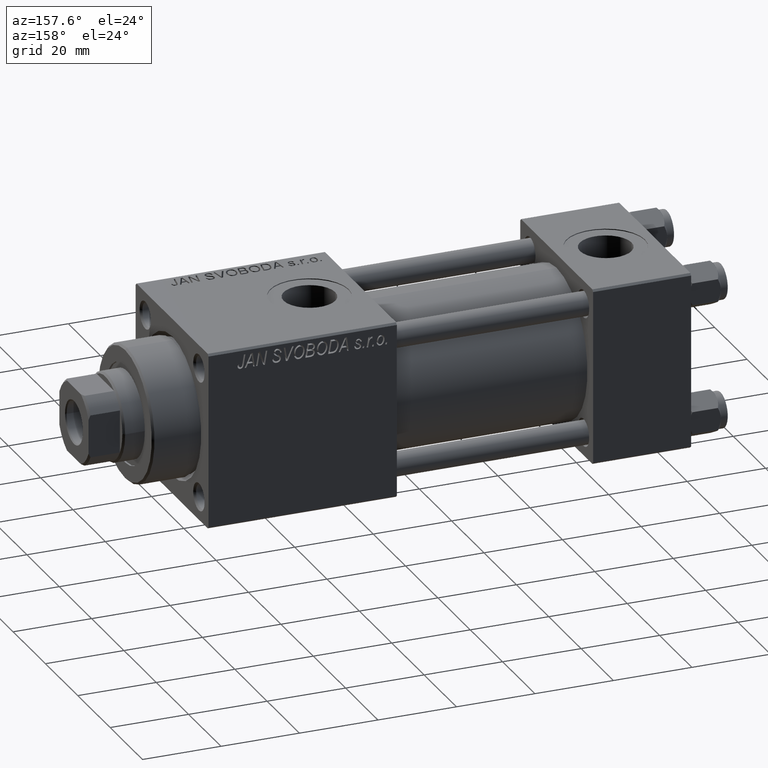
[diagram: clean part render]
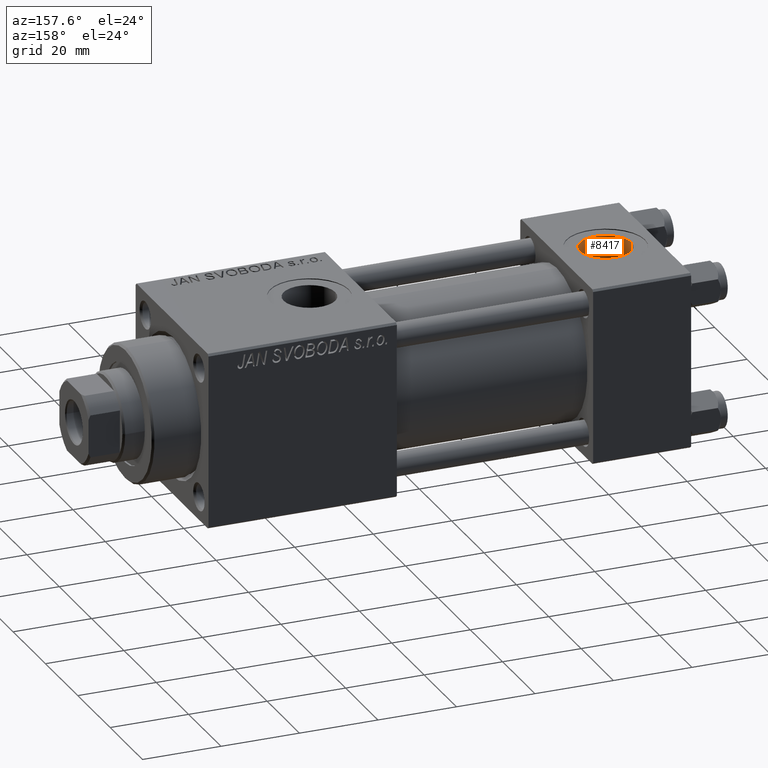
[diagram: same view with one face highlighted and labeled with its STEP entity id]
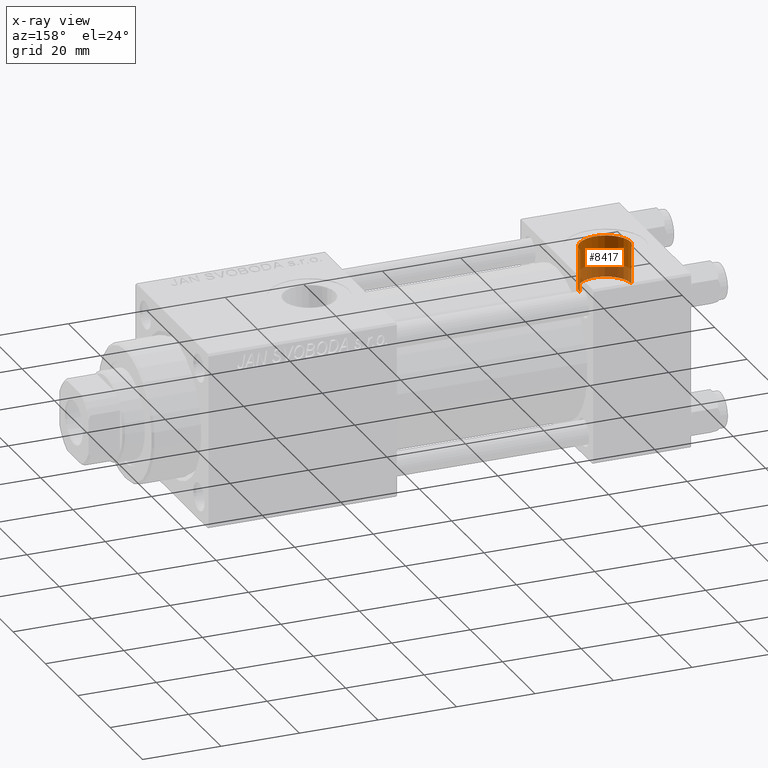
[diagram: x-ray of the same camera — body ghosted, the highlighted face saturated]
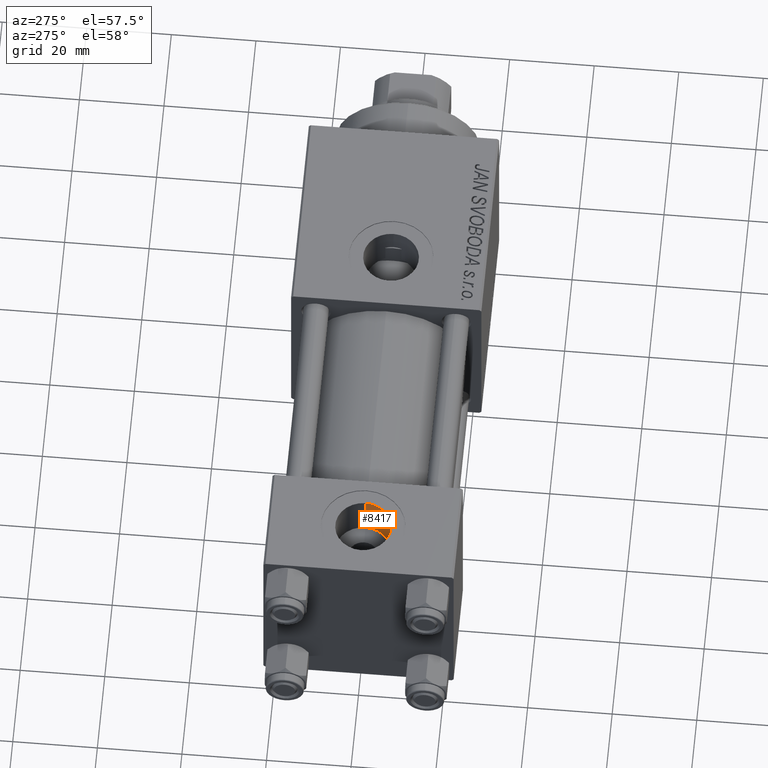
[diagram: same view with one face highlighted and labeled with its STEP entity id]
A machine part, auxiliary view. The second image highlights one B-rep face of the part: STEP entity #8417.
The next image is the same camera in x-ray: the body ghosted, the highlighted face saturated — about 32% of this face is hidden behind the body in this view.
A second angle (auxiliary view) of the same face is appended — the face is thin or edge-on in the first view.
In plain terms, the highlighted cylindrical surface (edge-blend (fillet) strip) has radius 6.58 mm, axis along (0, 0, 1).
Its self-contained STEP definition (entity closure, byte-faithful):
#227 = CARTESIAN_POINT ( 'NONE',  ( 12.50000000000000000, -1.734723475976807094E-15, 22.30000000000000071 ) ) ;
#641 = VECTOR ( 'NONE', #29941, 1000.000000000000000 ) ;
#1167 = CARTESIAN_POINT ( 'NONE',  ( 19.07999999999999829, -1.734723475976807094E-15, 11.66598726114649409 ) ) ;
#2643 = CARTESIAN_POINT ( 'NONE',  ( 5.920000000000002593, -9.289058821378490386E-16, 11.69999999999999929 ) ) ;
#3445 = ORIENTED_EDGE ( 'NONE', *, *, #12573, .T. ) ;
#7093 = LINE ( 'NONE', #2643, #641 ) ;
#7646 = DIRECTION ( 'NONE',  ( -0.000000000000000000, -0.000000000000000000, 1.000000000000000000 ) ) ;
#7837 = CIRCLE ( 'NONE', #29625, 6.579999999999999183 ) ;
#7923 = EDGE_CURVE ( 'NONE', #38993, #20762, #22772, .T. ) ;
#8417 = ADVANCED_FACE ( 'NONE', ( #26356 ), #45500, .F. ) ;
#9372 = AXIS2_PLACEMENT_3D ( 'NONE', #26620, #21900, #9574 ) ;
#9574 = DIRECTION ( 'NONE',  ( 1.000000000000000000, 0.000000000000000000, 0.000000000000000000 ) ) ;
#10641 = EDGE_CURVE ( 'NONE', #39005, #20762, #20003, .T. ) ;
#12040 = DIRECTION ( 'NONE',  ( 0.000000000000000000, 0.000000000000000000, 1.000000000000000000 ) ) ;
#12573 = EDGE_CURVE ( 'NONE', #39005, #38002, #7837, .T. ) ;
#14943 = CARTESIAN_POINT ( 'NONE',  ( 19.07999999999999829, -1.734723475976807094E-15, 22.30000000000000071 ) ) ;
#19120 = DIRECTION ( 'NONE',  ( 1.000000000000000000, 0.000000000000000000, 0.000000000000000000 ) ) ;
#20003 = LINE ( 'NONE', #39378, #22853 ) ;
#20762 = VERTEX_POINT ( 'NONE', #14943 ) ;
#21900 = DIRECTION ( 'NONE',  ( -0.000000000000000000, -0.000000000000000000, 1.000000000000000000 ) ) ;
#22772 = CIRCLE ( 'NONE', #50391, 6.579999999999999183 ) ;
#22853 = VECTOR ( 'NONE', #7646, 1000.000000000000000 ) ;
#24116 = DIRECTION ( 'NONE',  ( -0.000000000000000000, -0.000000000000000000, -1.000000000000000000 ) ) ;
#25758 = EDGE_CURVE ( 'NONE', #38002, #38993, #7093, .T. ) ;
#26356 = FACE_OUTER_BOUND ( 'NONE', #38629, .T. ) ;
#26620 = CARTESIAN_POINT ( 'NONE',  ( 12.50000000000000000, -1.734723475976807094E-15, 11.69999999999999929 ) ) ;
#29625 = AXIS2_PLACEMENT_3D ( 'NONE', #32234, #24116, #35897 ) ;
#29941 = DIRECTION ( 'NONE',  ( -0.000000000000000000, -0.000000000000000000, 1.000000000000000000 ) ) ;
#32234 = CARTESIAN_POINT ( 'NONE',  ( 12.50000000000000000, -1.734723475976807094E-15, 11.66598726114649409 ) ) ;
#35897 = DIRECTION ( 'NONE',  ( 1.000000000000000000, 0.000000000000000000, 0.000000000000000000 ) ) ;
#38002 = VERTEX_POINT ( 'NONE', #40512 ) ;
#38629 = EDGE_LOOP ( 'NONE', ( #3445, #46526, #49864, #46361 ) ) ;
#38993 = VERTEX_POINT ( 'NONE', #44460 ) ;
#39005 = VERTEX_POINT ( 'NONE', #1167 ) ;
#39378 = CARTESIAN_POINT ( 'NONE',  ( 19.07999999999999829, -1.734723475976807094E-15, 11.69999999999999929 ) ) ;
#40512 = CARTESIAN_POINT ( 'NONE',  ( 5.920000000000002593, -9.289058821378490386E-16, 11.66598726114649409 ) ) ;
#44460 = CARTESIAN_POINT ( 'NONE',  ( 5.920000000000002593, -9.289058821378490386E-16, 22.30000000000000071 ) ) ;
#45500 = CYLINDRICAL_SURFACE ( 'NONE', #9372, 6.579999999999999183 ) ;
#46361 = ORIENTED_EDGE ( 'NONE', *, *, #10641, .F. ) ;
#46526 = ORIENTED_EDGE ( 'NONE', *, *, #25758, .T. ) ;
#49864 = ORIENTED_EDGE ( 'NONE', *, *, #7923, .T. ) ;
#50391 = AXIS2_PLACEMENT_3D ( 'NONE', #227, #12040, #19120 ) ;